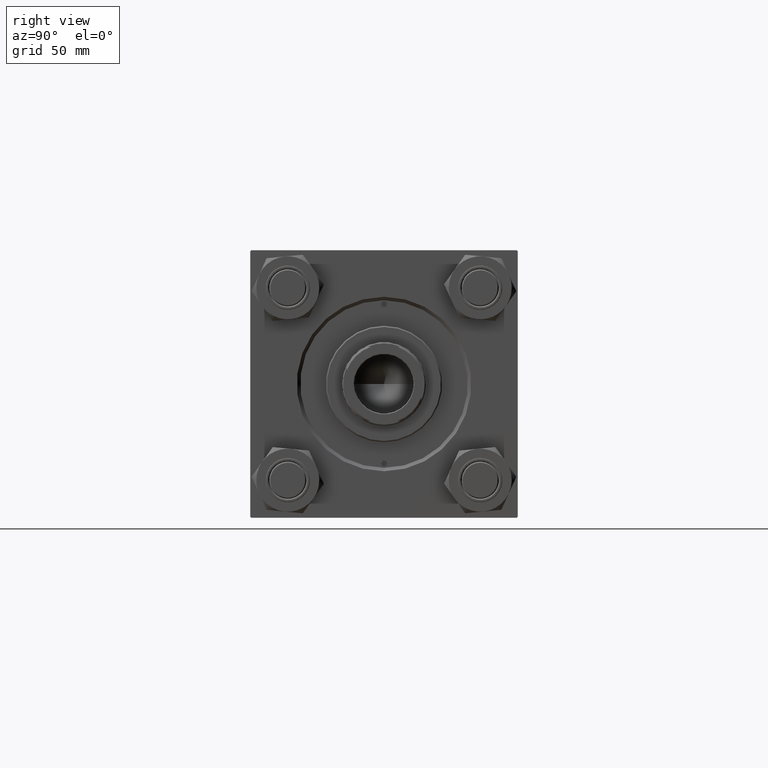
[diagram: clean part render]
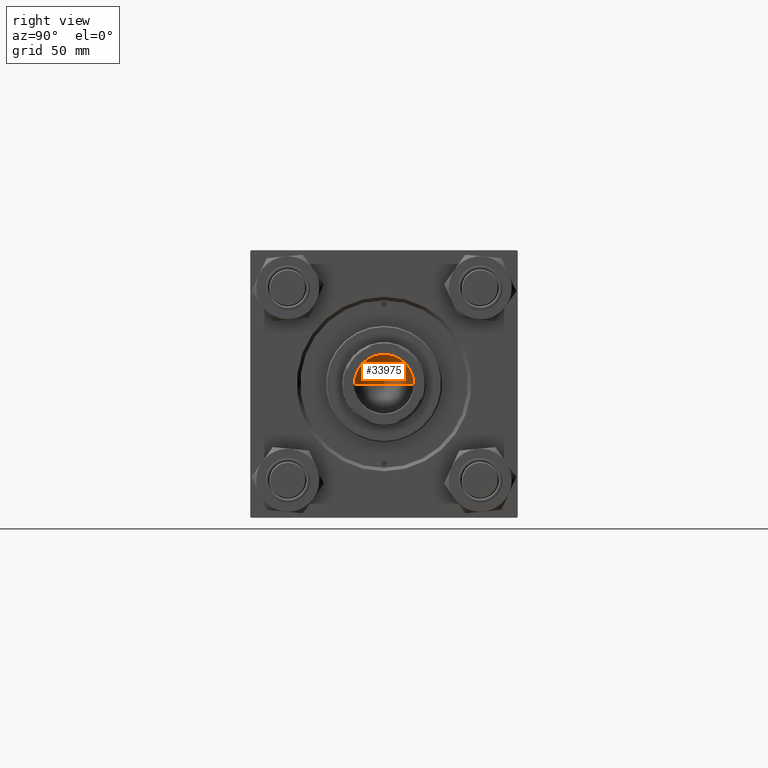
[diagram: same view with one face highlighted and labeled with its STEP entity id]
A machine part, right view. The second image highlights one B-rep face of the part: STEP entity #33975.
In plain terms, the highlighted conical surface has half-angle 59 deg.
Its self-contained STEP definition (entity closure, byte-faithful):
#5 = CARTESIAN_POINT ( 'NONE',  ( 0.000000000000000000, 0.000000000000000000, 121.0000000000000142 ) ) ;
#2943 = CARTESIAN_POINT ( 'NONE',  ( 12.74999999999998934, 0.000000000000000000, 121.0000000000000142 ) ) ;
#4653 = AXIS2_PLACEMENT_3D ( 'NONE', #5, #11235, #22485 ) ;
#8053 = CARTESIAN_POINT ( 'NONE',  ( 0.000000000000000000, 0.000000000000000000, 121.0000000000000142 ) ) ;
#9710 = VECTOR ( 'NONE', #17554, 1000.000000000000000 ) ;
#10093 = CARTESIAN_POINT ( 'NONE',  ( -12.74999999999998934, 1.561424668912873928E-15, 121.0000000000000142 ) ) ;
#11235 = DIRECTION ( 'NONE',  ( -0.000000000000000000, -0.000000000000000000, 1.000000000000000000 ) ) ;
#13563 = VECTOR ( 'NONE', #22892, 1000.000000000000000 ) ;
#15218 = CARTESIAN_POINT ( 'NONE',  ( 12.74999999999998934, 0.000000000000000000, 121.0000000000000142 ) ) ;
#16355 = ORIENTED_EDGE ( 'NONE', *, *, #36897, .F. ) ;
#17554 = DIRECTION ( 'NONE',  ( -0.8571673007021117785, 1.049727191138617956E-16, 0.5150380749100550437 ) ) ;
#22399 = LINE ( 'NONE', #15218, #13563 ) ;
#22485 = DIRECTION ( 'NONE',  ( 1.000000000000000000, 0.000000000000000000, 0.000000000000000000 ) ) ;
#22587 = CIRCLE ( 'NONE', #4653, 12.74999999999998934 ) ;
#22892 = DIRECTION ( 'NONE',  ( 0.8571673007021117785, 0.000000000000000000, 0.5150380749100550437 ) ) ;
#26684 = AXIS2_PLACEMENT_3D ( 'NONE', #8053, #47086, #27436 ) ;
#27436 = DIRECTION ( 'NONE',  ( 1.000000000000000000, 0.000000000000000000, 0.000000000000000000 ) ) ;
#27951 = EDGE_LOOP ( 'NONE', ( #16355, #45750, #30702 ) ) ;
#30702 = ORIENTED_EDGE ( 'NONE', *, *, #33518, .T. ) ;
#33518 = EDGE_CURVE ( 'NONE', #41492, #41432, #22587, .T. ) ;
#33975 = ADVANCED_FACE ( 'NONE', ( #47849 ), #46180, .F. ) ;
#36897 = EDGE_CURVE ( 'NONE', #50334, #41432, #22399, .T. ) ;
#40787 = CARTESIAN_POINT ( 'NONE',  ( -12.74999999999998934, 1.561424668912873928E-15, 121.0000000000000142 ) ) ;
#41043 = LINE ( 'NONE', #40787, #9710 ) ;
#41432 = VERTEX_POINT ( 'NONE', #2943 ) ;
#41492 = VERTEX_POINT ( 'NONE', #10093 ) ;
#41919 = EDGE_CURVE ( 'NONE', #50334, #41492, #41043, .T. ) ;
#45671 = CARTESIAN_POINT ( 'NONE',  ( -1.410643066818227497E-14, 0.000000000000000000, 113.3390271073986071 ) ) ;
#45750 = ORIENTED_EDGE ( 'NONE', *, *, #41919, .T. ) ;
#46180 = CONICAL_SURFACE ( 'NONE', #26684, 12.74999999999998934, 1.029744258676653423 ) ;
#47086 = DIRECTION ( 'NONE',  ( -0.000000000000000000, -0.000000000000000000, 1.000000000000000000 ) ) ;
#47849 = FACE_OUTER_BOUND ( 'NONE', #27951, .T. ) ;
#50334 = VERTEX_POINT ( 'NONE', #45671 ) ;